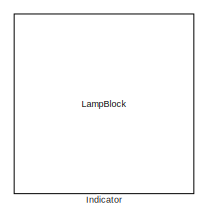
[diagram: root canvas - part 1/2, top right region]
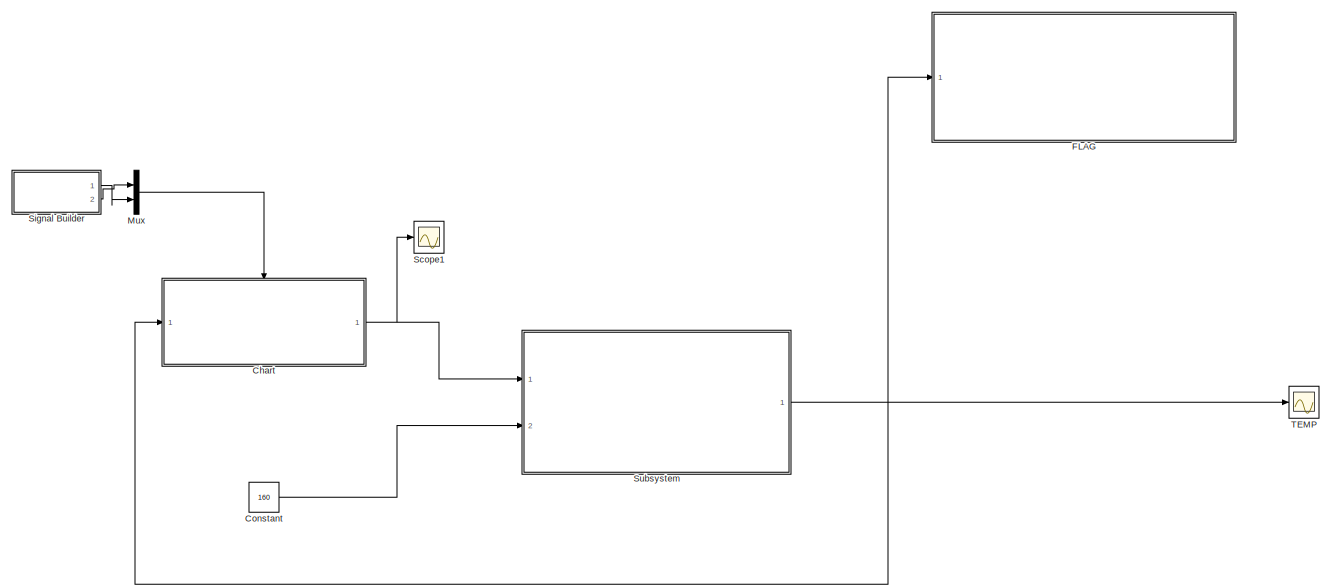
[diagram: root canvas - part 2/2, most of the canvas]
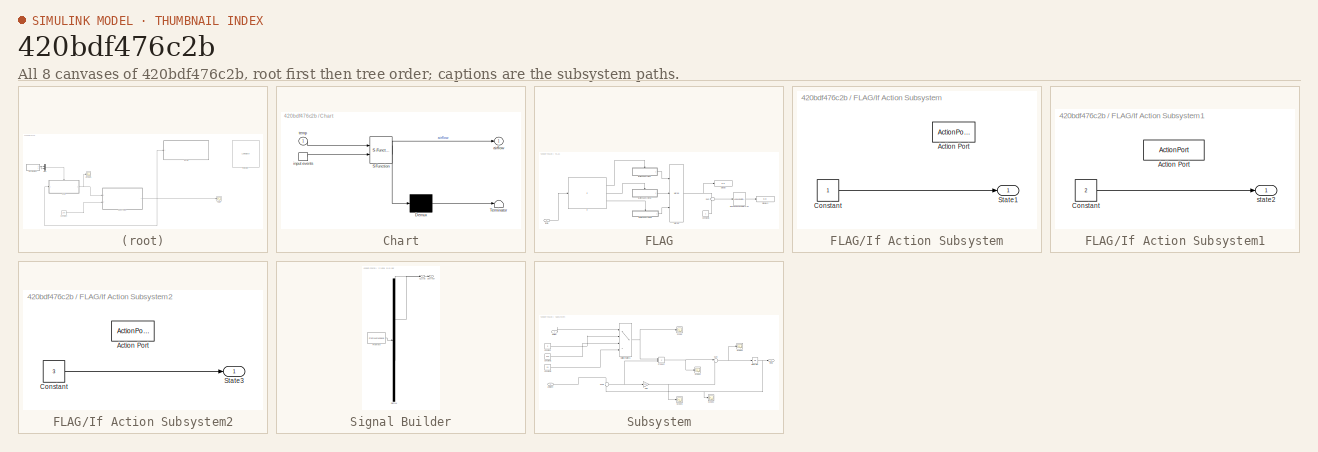
[diagram: thumbnail index - all 8 canvases of the model, root first then tree order]
MODEL slx_420bdf476c2b
KIND model
CONFIG AbsTol = auto
CONFIG EnableMultiTasking = off
CONFIG FixedStep = auto
CONFIG MaxStep = auto
CONFIG MinStep = auto
CONFIG RelTol = 1e-3
CONFIG SampleTimeConstraint = Unconstrained
CONFIG SolverName = VariableStepAuto
CONFIG StartTime = 0.0
CONFIG StopTime = 600
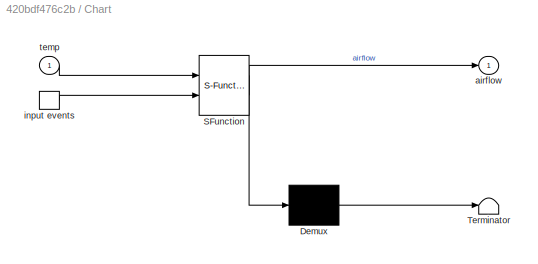
BLOCK [SubSystem] Chart
  ErrorFcn = Stateflow.Translate.translate
  PermitHierarchicalResolution = ExplicitOnly
  Ports = [1, 1, 0, 1]
  RequestExecContextInheritance = off
  SFBlockType = Chart
  TreatAsAtomicUnit = on
BLOCK [Demux] Chart/ Demux 
  Outputs = 1
  Ports = [1, 1]
BLOCK [S-Function] Chart/ SFunction 
  EnableBusSupport = on
  FunctionName = sf_sfun
  PortCounts = [2 2]
  Ports = [2, 2]
  SFcnIsStateOwnerBlock = off
  SFunctionDeploymentMode = off
  Tag = Stateflow S-Function 3
BLOCK [Terminator] Chart/ Terminator 
BLOCK [Outport] Chart/airflow
BLOCK [TriggerPort] Chart/input events
  Ports = [0, 1]
  ShowOutputPort = on
  StatesWhenEnabling = held
  TriggerType = either
  VariantControl = (inherit)
BLOCK [Inport] Chart/temp
BLOCK [Constant] Constant
  Value = 160
BLOCK [SubSystem] FLAG
  Ports = [1]
  RequestExecContextInheritance = off
BLOCK [Constant] FLAG/Constant1
BLOCK [LookupNDDirect] FLAG/Direct Lookup Table (n-D)
  NumberOfTableDimensions = 1
  Ports = [1, 1]
  Table = [1 2 3]
BLOCK [Display] FLAG/Display
  Decimation = 1
  Ports = [1]
BLOCK [Display] FLAG/Display2
  Decimation = 1
  Ports = [1]
BLOCK [If] FLAG/If
  ElseIfExpressions = u1 <155
  IfExpression = u1 <110
  Ports = [1, 3]
BLOCK [SubSystem] FLAG/If Action Subsystem
  Ports = [0, 1, 0, 0, 0, 0, 0, 1]
  RequestExecContextInheritance = off
  TreatAsAtomicUnit = on
BLOCK [ActionPort] FLAG/If Action Subsystem/Action Port
  ActionPortLabel = if( u1 <110)
BLOCK [Constant] FLAG/If Action Subsystem/Constant
BLOCK [Outport] FLAG/If Action Subsystem/State1
BLOCK [SubSystem] FLAG/If Action Subsystem1
  Ports = [0, 1, 0, 0, 0, 0, 0, 1]
  RequestExecContextInheritance = off
  TreatAsAtomicUnit = on
BLOCK [ActionPort] FLAG/If Action Subsystem1/Action Port
  ActionPortLabel = elseif(u1 <155)
BLOCK [Constant] FLAG/If Action Subsystem1/Constant
  Value = 2
BLOCK [Outport] FLAG/If Action Subsystem1/state2
BLOCK [SubSystem] FLAG/If Action Subsystem2
  Ports = [0, 1, 0, 0, 0, 0, 0, 1]
  RequestExecContextInheritance = off
  TreatAsAtomicUnit = on
BLOCK [ActionPort] FLAG/If Action Subsystem2/Action Port
  ActionPortLabel = else
BLOCK [Constant] FLAG/If Action Subsystem2/Constant
  Value = 3
BLOCK [Outport] FLAG/If Action Subsystem2/State3
BLOCK [Merge] FLAG/Merge
  Inputs = 3
  Ports = [3, 1]
BLOCK [Sum] FLAG/Sum
  Inputs = +-
  Ports = [2, 1]
BLOCK [Inport] FLAG/temp
BLOCK [LampBlock] Indicator
  LabelPosition = Hide
BLOCK [Mux] Mux
  DisplayOption = bar
  Inputs = 2
  Ports = [2, 1]
BLOCK [Scope] Scope1
  Floating = off
  NumInputPorts = 1
  Ports = [1]
  ScopeSpecificationString = Simulink.scopes.TimeScopeBlockCfg('CurrentConfiguration', extmgr.ConfigurationSet(extmgr.Configuration('Core','General UI',true),extmgr.Configuration('Core','Source UI',true),extmgr.Configuration('Sources','WiredSimulink',true,'DataLoggingVariableName','ScopeData6'),extmgr.Configuration('Visuals','Time Domain',true,'SerializedDisplays',{struct('MinYLimReal','-0.25','MaxYLimReal','2.25','YLabelReal...<+1375ch>
BLOCK [SubSystem] Signal Builder
  ClipboardFcn = sigbuilder_block('clipboard');
  CloseFcn = sigbuilder_block('close');
  ContinueFcn = sigbuilder_block('continue');
  CopyFcn = sigbuilder_block('copy');
  DeleteFcn = sigbuilder_block('delete');
  LoadFcn = sigbuilder_block('load');
  MaskHideContents = on
  ModelCloseFcn = sigbuilder_block('modelClose');
  NameChangeFcn = sigbuilder_block('namechange');
  OpenFcn = sigbuilder_block('open',[377 114 550 400 ]);
  PauseFcn = sigbuilder_block('pause');
  Ports = [0, 2]
  PreSaveFcn = sigbuilder_block('preSave');
  RequestExecContextInheritance = off
  StartFcn = sigbuilder_block('start');
  StopFcn = sigbuilder_block('stop');
  Tag = STV Subsys
BLOCK [Outport] Signal Builder/CLOCK
  Tag = STV Outport
BLOCK [Demux] Signal Builder/Demux
  DisplayOption = none
  Outputs = 2
  Ports = [1, 2]
  Tag = STV Demux
BLOCK [FromWorkspace] Signal Builder/FromWs
  Tag = STV FromWs
  VariableName = tuvar
BLOCK [Outport] Signal Builder/SWITCH
  Port = 2
  Tag = STV Outport
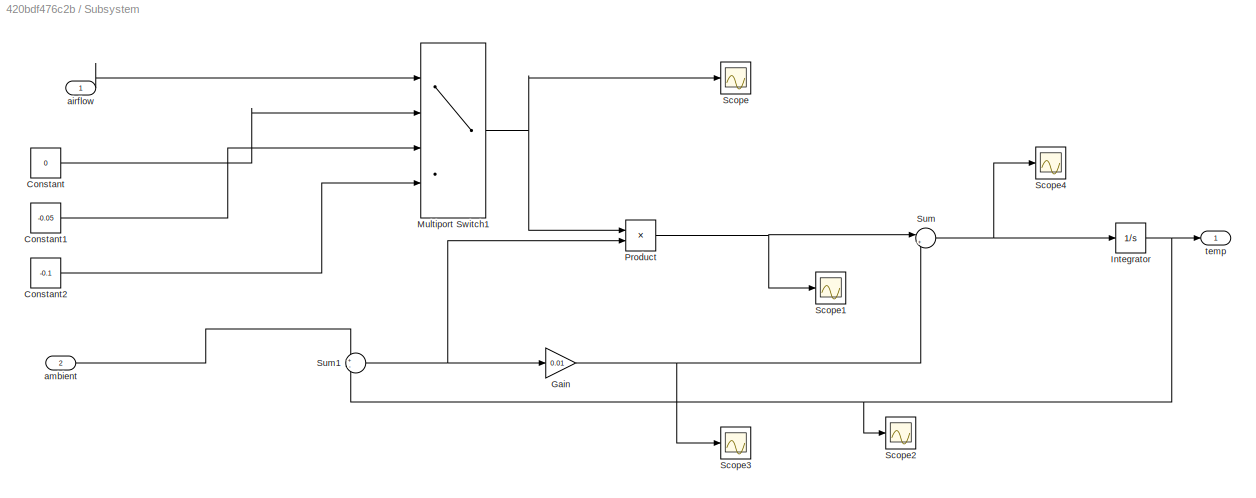
BLOCK [SubSystem] Subsystem
  Ports = [2, 1]
  RequestExecContextInheritance = off
BLOCK [Constant] Subsystem/Constant
  Value = 0
BLOCK [Constant] Subsystem/Constant1
  Value = -0.05
BLOCK [Constant] Subsystem/Constant2
  Value = -0.1
BLOCK [Gain] Subsystem/Gain
  Gain = 0.01
BLOCK [Integrator] Subsystem/Integrator
  InitialCondition = 70
  Ports = [1, 1]
BLOCK [MultiPortSwitch] Subsystem/Multiport Switch1
  DataPortOrder = Zero-based contiguous
  InputSameDT = off
  Ports = [4, 1]
  SaturateOnIntegerOverflow = off
  zeroidx = on
BLOCK [Product] Subsystem/Product
  Ports = [2, 1]
BLOCK [Scope] Subsystem/Scope
  Floating = off
  NumInputPorts = 1
  Ports = [1]
  ScopeSpecificationString = Simulink.scopes.TimeScopeBlockCfg('CurrentConfiguration', extmgr.ConfigurationSet(extmgr.Configuration('Core','General UI',true),extmgr.Configuration('Core','Source UI',true),extmgr.Configuration('Sources','WiredSimulink',true,'DataLoggingVariableName','ScopeData1'),extmgr.Configuration('Visuals','Time Domain',true,'SerializedDisplays',{struct('MinYLimReal','-0.1125','MaxYLimReal','0.0125','YLabel...<+1370ch>
BLOCK [Scope] Subsystem/Scope1
  Floating = off
  NumInputPorts = 1
  Ports = [1]
  ScopeSpecificationString = Simulink.scopes.TimeScopeBlockCfg('CurrentConfiguration', extmgr.ConfigurationSet(extmgr.Configuration('Core','General UI',true),extmgr.Configuration('Core','Source UI',true),extmgr.Configuration('Sources','WiredSimulink',true,'DataLoggingVariableName','ScopeData2'),extmgr.Configuration('Visuals','Time Domain',true,'SerializedDisplays',{struct('MinYLimReal','-2.28613','MaxYLimReal','0.25401','YLab...<+1366ch>
BLOCK [Scope] Subsystem/Scope2
  Floating = off
  NumInputPorts = 1
  Ports = [1]
  ScopeSpecificationString = Simulink.scopes.TimeScopeBlockCfg('CurrentConfiguration', extmgr.ConfigurationSet(extmgr.Configuration('Core','General UI',true),extmgr.Configuration('Core','Source UI',true),extmgr.Configuration('Sources','WiredSimulink',true,'DataLoggingVariableName','ScopeData3'),extmgr.Configuration('Visuals','Time Domain',true,'SerializedDisplays',{struct('MinYLimReal','59.08972','MaxYLimReal','168.19251','YL...<+1379ch>
BLOCK [Scope] Subsystem/Scope3
  Floating = off
  NumInputPorts = 1
  Ports = [1]
  ScopeSpecificationString = Simulink.scopes.TimeScopeBlockCfg('CurrentConfiguration', extmgr.ConfigurationSet(extmgr.Configuration('Core','General UI',true),extmgr.Configuration('Core','Source UI',true),extmgr.Configuration('Sources','WiredSimulink',true,'DataLoggingVariableName','ScopeData4'),extmgr.Configuration('Visuals','Time Domain',true,'SerializedDisplays',{struct('MinYLimReal','-0.08193','MaxYLimReal','1.0091','YLabe...<+1359ch>
BLOCK [Scope] Subsystem/Scope4
  Floating = off
  NumInputPorts = 1
  Ports = [1]
  ScopeSpecificationString = Simulink.scopes.TimeScopeBlockCfg('CurrentConfiguration', extmgr.ConfigurationSet(extmgr.Configuration('Core','General UI',true),extmgr.Configuration('Core','Source UI',true),extmgr.Configuration('Sources','WiredSimulink',true,'DataLoggingVariableName','ScopeData5'),extmgr.Configuration('Visuals','Time Domain',true,'SerializedDisplays',{struct('MinYLimReal','-1.9414','MaxYLimReal','1.21571','YLabe...<+1358ch>
BLOCK [Sum] Subsystem/Sum
  Inputs = |++
  Ports = [2, 1]
BLOCK [Sum] Subsystem/Sum1
  Inputs = +-
  Ports = [2, 1]
BLOCK [Inport] Subsystem/airflow
BLOCK [Inport] Subsystem/ambient
  Port = 2
BLOCK [Outport] Subsystem/temp
BLOCK [Scope] TEMP
  Floating = off
  NumInputPorts = 1
  Ports = [1]
  ScopeSpecificationString = Simulink.scopes.TimeScopeBlockCfg('CurrentConfiguration', extmgr.ConfigurationSet(extmgr.Configuration('Core','General UI',true),extmgr.Configuration('Core','Source UI',true),extmgr.Configuration('Sources','WiredSimulink',true),extmgr.Configuration('Visuals','Time Domain',true,'SerializedDisplays',{struct('MinYLimReal','59.08972','MaxYLimReal','168.19251','YLabelReal','','MinYLimMag','59.08972','M...<+1391ch>
NET Chart:1 -> Scope1:1, Subsystem:1
LINE Constant:1 -> Subsystem:2
LINE FLAG/Constant1:1 -> FLAG/Sum:2
LINE FLAG/Direct Lookup Table (n-D):1 -> FLAG/Display2:1
LINE FLAG/If Action Subsystem/Constant:1 -> FLAG/If Action Subsystem/State1:1
LINE FLAG/If Action Subsystem1/Constant:1 -> FLAG/If Action Subsystem1/state2:1
LINE FLAG/If Action Subsystem1:1 -> FLAG/Merge:2
LINE FLAG/If Action Subsystem2/Constant:1 -> FLAG/If Action Subsystem2/State3:1
LINE FLAG/If Action Subsystem2:1 -> FLAG/Merge:3
LINE FLAG/If Action Subsystem:1 -> FLAG/Merge:1
LINE FLAG/If:1 -> FLAG/If Action Subsystem:ifaction
LINE FLAG/If:2 -> FLAG/If Action Subsystem1:ifaction
LINE FLAG/If:3 -> FLAG/If Action Subsystem2:ifaction
NET FLAG/Merge:1 -> FLAG/Display:1, FLAG/Sum:1
LINE FLAG/Sum:1 -> FLAG/Direct Lookup Table (n-D):1
LINE FLAG/temp:1 -> FLAG/If:1
LINE Mux:1 -> Chart:trigger
LINE Signal Builder:1 -> Mux:2
LINE Signal Builder:2 -> Mux:1
LINE Subsystem/Constant1:1 -> Subsystem/Multiport Switch1:3
LINE Subsystem/Constant2:1 -> Subsystem/Multiport Switch1:4
LINE Subsystem/Constant:1 -> Subsystem/Multiport Switch1:2
NET Subsystem/Gain:1 -> Subsystem/Scope3:1, Subsystem/Sum:2
NET Subsystem/Integrator:1 -> Subsystem/Scope2:1, Subsystem/Sum1:2, Subsystem/temp:1
NET Subsystem/Multiport Switch1:1 -> Subsystem/Product:1, Subsystem/Scope:1
NET Subsystem/Product:1 -> Subsystem/Scope1:1, Subsystem/Sum:1
NET Subsystem/Sum1:1 -> Subsystem/Gain:1, Subsystem/Product:2
NET Subsystem/Sum:1 -> Subsystem/Integrator:1, Subsystem/Scope4:1
LINE Subsystem/airflow:1 -> Subsystem/Multiport Switch1:1
LINE Subsystem/ambient:1 -> Subsystem/Sum1:1
NET Subsystem:1 -> Chart:1, FLAG:1, TEMP:1
note: NET lines group one-source signal fan-out (src -> all destinations, sorted); 1:1 wires keep LINE
CHART Chart states=9 transitions=9
  STATE_LABEL 'Power_ON'
  STATE_LABEL 'Fan_1'
  STATE_LABEL 'On'
  STATE_LABEL 'Off'
  STATE_LABEL '[temp < 120]'
  STATE_LABEL '[temp >= 120]'
  STATE_LABEL 'Fan_2'
  STATE_LABEL 'On'
  STATE_LABEL 'Off'
  STATE_LABEL '[temp < 150]'
  STATE_LABEL '[temp>= 150]'
  STATE_LABEL 'Speed_Value\nduring: airflow = in(Fan_1.On) + in(Fan_2.On);'
  STATE_LABEL 'Fan_1'
  STATE_LABEL 'On'
  STATE_LABEL 'Off'
  STATE_LABEL '[temp < 120]'
  STATE_LABEL '[temp >= 120]'
  STATE_LABEL 'On'
  STATE_LABEL 'Off'
  STATE_LABEL 'Fan_2'
  STATE_LABEL 'On'
  STATE_LABEL 'Off'
  STATE_LABEL '[temp < 150]'
  STATE_LABEL '[temp>= 150]'
  STATE_LABEL 'On'
  STATE_LABEL 'Off'
  STATE_LABEL 'Speed_Value\nduring: airflow = in(Fan_1.On) + in(Fan_2.On);'
  STATE_LABEL 'Power_OFF\n\nentry: airflow = 0;'
CHART  states=0 transitions=0
